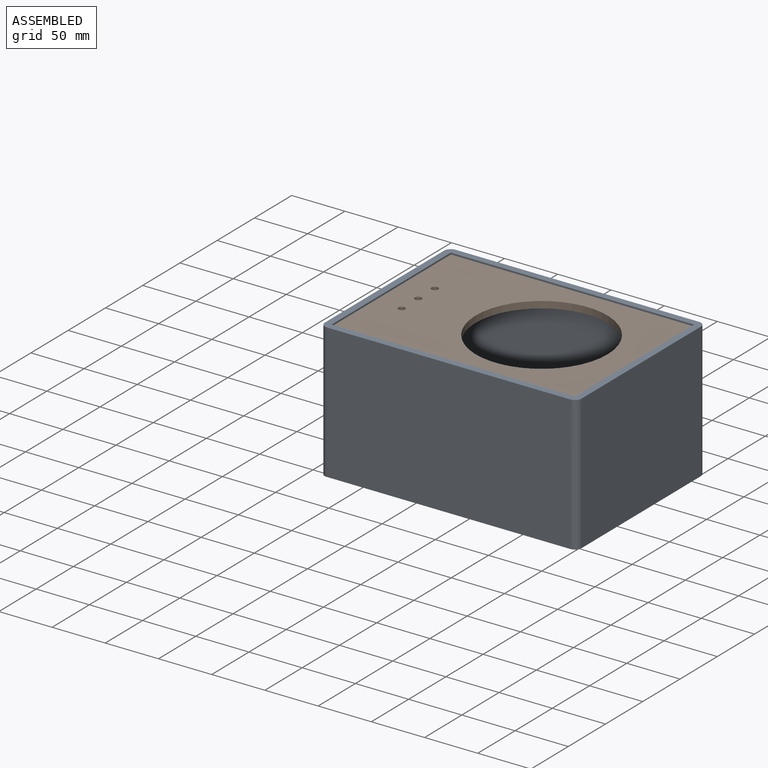
[diagram: assembled view]
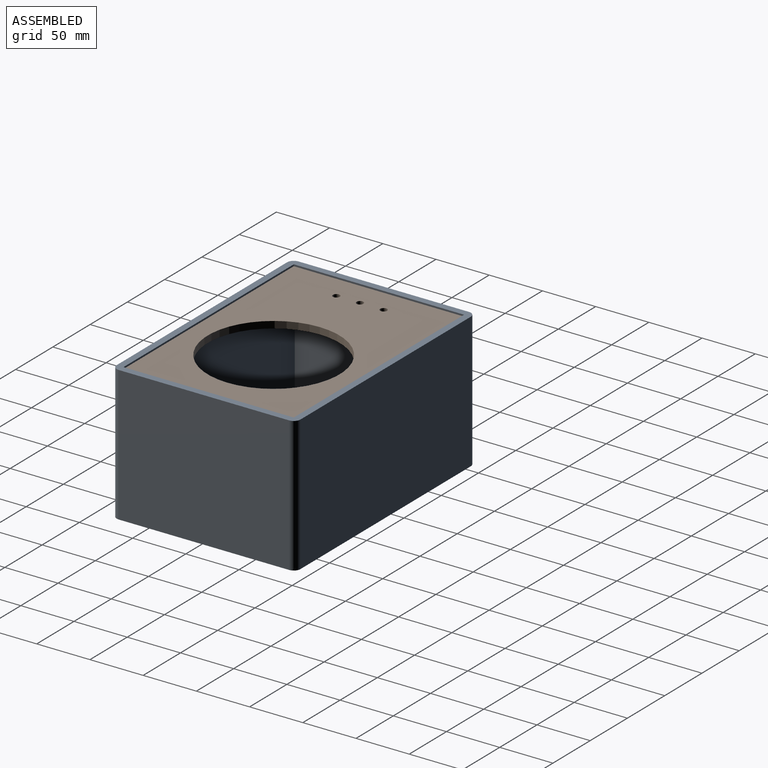
[diagram: assembled view, second angle]
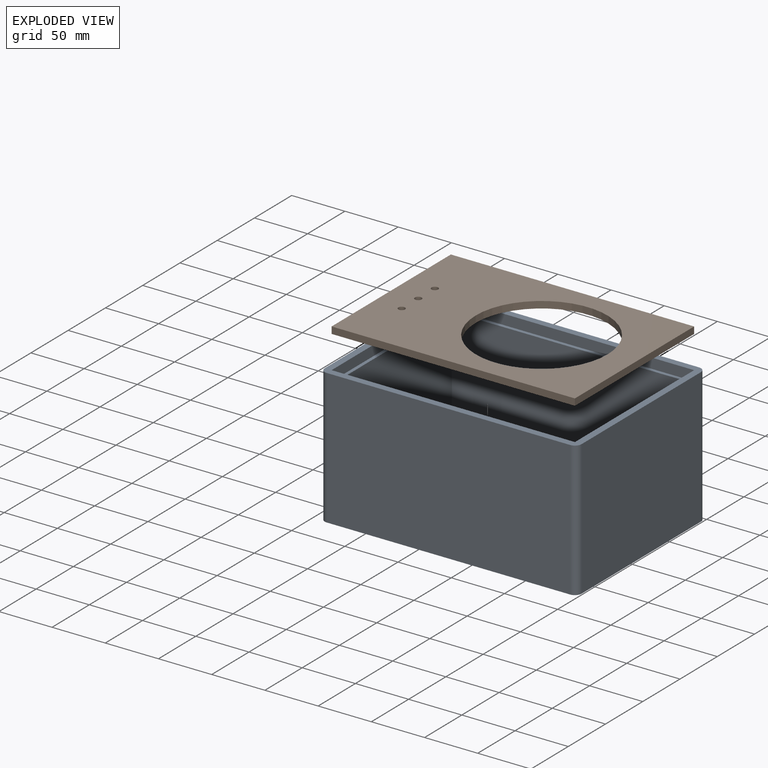
[diagram: exploded view]
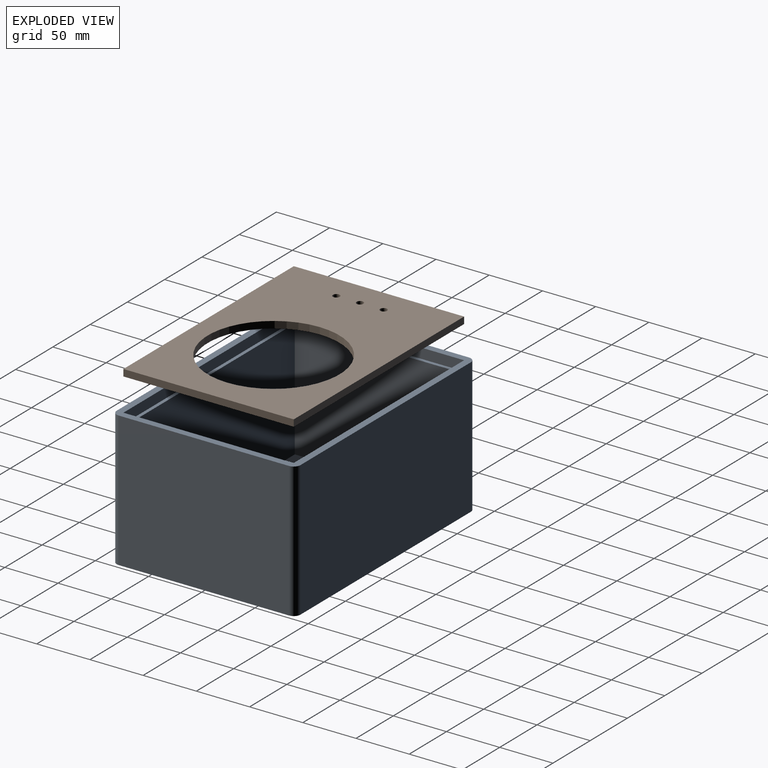
[diagram: exploded view, second angle]
ASSEMBLY  parts=2 mates=2
PART A: 25 faces, bbox 172.7x241.3x127 mm
  f0: plane 241.3x172.72mm, normal (0,0,-1), area 40930.3mm2, adj f3,f4,f5,f6,f7,f8,f9,f10
  f1: plane 222.25x153.67mm, normal (0,0,1), area 33440.7mm2, adj f16,f17,f18,f19,f20,f21,f22,f23
  f2: plane 241.3x172.72mm, normal (0,0,1), area 5062.2mm2, adj f3,f4,f5,f6,f7,f8,f9,f10
  f3: plane 160.02x127mm, normal (0,-1,0), area 20322.5mm2, adj f0,f2,f4,f10
  f4: cylinder r=6.35mm len=127mm, axis (0,0,-1), area 1266.8mm2, adj f0,f2,f3,f5
  f5: plane 228.6x127mm, normal (1,0,0), area 29032.2mm2, adj f0,f2,f4,f6
  f6: cylinder r=6.35mm len=127mm, axis (0,0,-1), area 1266.8mm2, adj f0,f2,f5,f7
  f7: plane 160.02x127mm, normal (0,1,0), area 20322.5mm2, adj f0,f2,f6,f8
  f8: cylinder r=6.35mm len=127mm, axis (0,0,-1), area 1266.8mm2, adj f0,f2,f7,f9
  f9: plane 228.6x127mm, normal (-1,0,0), area 29032.2mm2, adj f0,f2,f8,f10
  f10: cylinder r=6.35mm len=127mm, axis (0,0,-1), area 1266.8mm2, adj f0,f2,f3,f9
  f11: plane 228.6x9.53mm, normal (1,0,0), area 2177.4mm2, adj f2,f12,f14,f15
  f12: plane 160.02x9.53mm, normal (0,1,0), area 1524.2mm2, adj f2,f11,f13,f15
  f13: plane 228.6x9.53mm, normal (-1,0,0), area 2177.4mm2, adj f2,f12,f14,f15
  f14: plane 160.02x9.53mm, normal (0,-1,0), area 1524.2mm2, adj f2,f11,f13,f15
  f15: plane 228.6x160.02mm, normal (0,0,1), area 2427.4mm2, adj f11,f12,f13,f14,f16,f17,f18,f19
  f16: plane 153.67x111.13mm, normal (0,1,0), area 17076.6mm2, adj f1,f15,f17,f19
  f17: plane 222.25x111.13mm, normal (-1,0,0), area 24697.5mm2, adj f1,f15,f16,f18
  f18: plane 153.67x111.13mm, normal (0,-1,0), area 17076.6mm2, adj f1,f15,f17,f19
  f19: plane 222.25x111.13mm, normal (1,0,0), area 24697.5mm2, adj f1,f15,f16,f18
  f20: cylinder r=1.59mm len=6.35mm, axis (0,0,-1), area 63.3mm2, adj f0,f1
  f21: plane 29.61x6.35mm, normal (0,1,0), area 188mm2, adj f0,f1,f22,f24
  f22: plane 23.8x6.35mm, normal (1,0,0), area 151.1mm2, adj f0,f1,f21,f23
  f23: plane 29.61x6.35mm, normal (0,-1,0), area 188mm2, adj f0,f1,f22,f24
  f24: plane 23.8x6.35mm, normal (-1,0,0), area 151.1mm2, adj f0,f1,f21,f23
PART B: 10 faces, bbox 228.6x160x6.4 mm
  f0: plane 228.6x6.35mm, normal (0,1,0), area 1451.6mm2, adj f1,f3,f4,f5
  f1: plane 160.02x6.35mm, normal (-1,0,0), area 1016.1mm2, adj f0,f2,f4,f5
  f2: plane 228.6x6.35mm, normal (0,-1,0), area 1451.6mm2, adj f1,f3,f4,f5
  f3: plane 160.02x6.35mm, normal (1,0,0), area 1016.1mm2, adj f0,f2,f4,f5
  f4: plane 228.6x160.02mm, normal (0,0,1), area 24443.3mm2, adj f0,f1,f2,f3,f6,f7,f8,f9
  f5: plane 228.6x160.02mm, normal (0,0,-1), area 24443.3mm2, adj f0,f1,f2,f3,f6,f7,f8,f9
  f6: cylinder r=61.91mm len=123.83mm, axis (0,0,1), area 2470.2mm2, adj f4,f5
  f7: cylinder r=3.17mm len=6.35mm, axis (0,0,1), area 126.7mm2, adj f4,f5
  f8: cylinder r=3.17mm len=6.35mm, axis (0,0,1), area 126.7mm2, adj f4,f5
  f9: cylinder r=3.17mm len=6.35mm, axis (0,0,1), area 126.7mm2, adj f4,f5
PLACE A rot(axis=(0,0,-1),90deg) t=(13.51,-42.14,-169.32)mm
PLACE B rot(axis=(0.04,-0.07,-1),0deg) t=(133.38,-93.5,-50.26)mm
MATE planar B.f3 <-> A.f14  axis (1,0,0) through (248.46,-94.6,-47.09)mm
MATE planar B.f2 <-> A.f13  axis (0,-1,0) through (248.46,-174.61,-47.09)mm
